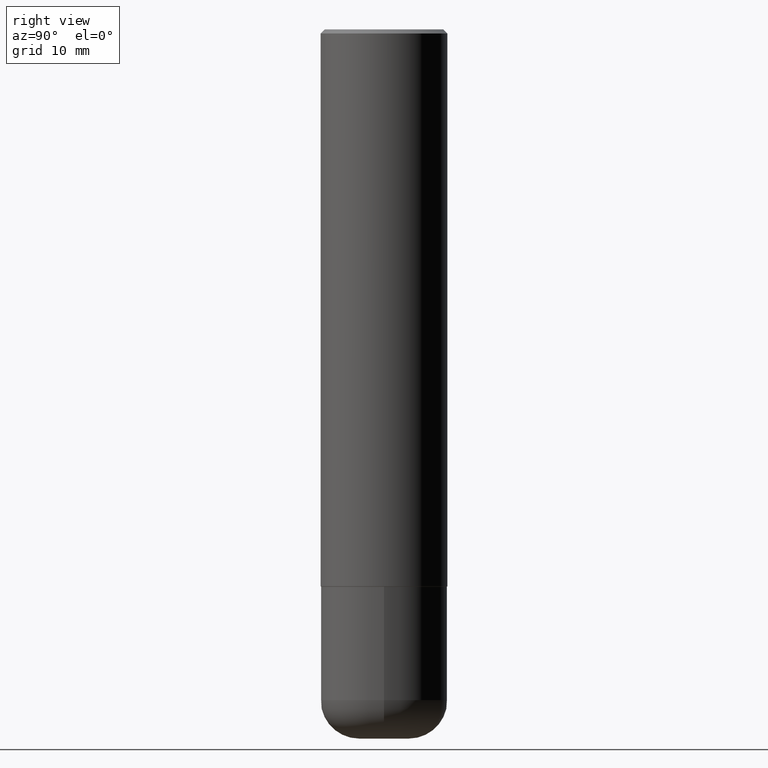
[diagram: clean part render]
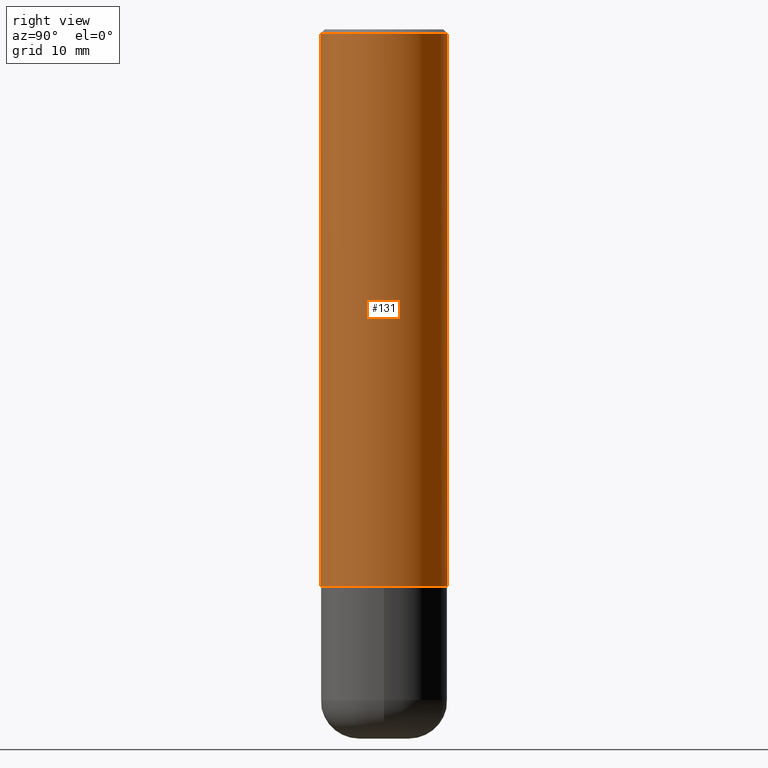
[diagram: same view with one face highlighted and labeled with its STEP entity id]
A machine part, right view. The second image highlights one B-rep face of the part: STEP entity #131.
In plain terms, the highlighted cylindrical surface (partial cylindrical patch) has radius 7.9375 mm, axis along (-0, 0, 1).
Its self-contained STEP definition (entity closure, byte-faithful):
#25 = VERTEX_POINT ( 'NONE', #68 ) ;
#30 = LINE ( 'NONE', #159, #148 ) ;
#68 = CARTESIAN_POINT ( 'NONE',  ( -2.182175836776892872E-15, -0.3125000000000099365, -2.748999999999999222 ) ) ;
#107 = EDGE_CURVE ( 'NONE', #25, #319, #198, .T. ) ;
#115 = CARTESIAN_POINT ( 'NONE',  ( 4.889594666967924290E-31, -6.984885851938207279E-17, -0.02000000000000006981 ) ) ;
#120 = CIRCLE ( 'NONE', #369, 0.3125000000000002776 ) ;
#123 = ORIENTED_EDGE ( 'NONE', *, *, #107, .F. ) ;
#131 = ADVANCED_FACE ( 'NONE', ( #332 ), #165, .T. ) ;
#133 = CARTESIAN_POINT ( 'NONE',  ( 0.000000000000000000, 0.000000000000000000, 0.000000000000000000 ) ) ;
#141 = CARTESIAN_POINT ( 'NONE',  ( 2.220446049250347791E-15, 0.3124999999999906741, -2.749000000000000998 ) ) ;
#142 = AXIS2_PLACEMENT_3D ( 'NONE', #133, #394, #226 ) ;
#148 = VECTOR ( 'NONE', #251, 39.37007874015748143 ) ;
#157 = CARTESIAN_POINT ( 'NONE',  ( -2.143905624303602036E-15, -0.3124999999999999445, -0.01999999999999897693 ) ) ;
#159 = CARTESIAN_POINT ( 'NONE',  ( 2.220446049250313081E-15, 0.3125000000000000555, -1.091388414365341542E-15 ) ) ;
#165 = CYLINDRICAL_SURFACE ( 'NONE', #142, 0.3125000000000000555 ) ;
#170 = EDGE_CURVE ( 'NONE', #25, #283, #120, .T. ) ;
#172 = CARTESIAN_POINT ( 'NONE',  ( -2.182175836776958741E-15, -0.3125000000000000555, 1.091388414365341542E-15 ) ) ;
#185 = ORIENTED_EDGE ( 'NONE', *, *, #320, .T. ) ;
#192 = AXIS2_PLACEMENT_3D ( 'NONE', #115, #311, #344 ) ;
#198 = LINE ( 'NONE', #172, #375 ) ;
#218 = ORIENTED_EDGE ( 'NONE', *, *, #242, .F. ) ;
#226 = DIRECTION ( 'NONE',  ( -6.982962677686266711E-15, -1.000000000000000000, 3.492442925969092226E-15 ) ) ;
#239 = DIRECTION ( 'NONE',  ( -6.982962677686265922E-15, -1.000000000000000000, 3.496765431890253764E-15 ) ) ;
#240 = VERTEX_POINT ( 'NONE', #338 ) ;
#242 = EDGE_CURVE ( 'NONE', #319, #240, #277, .T. ) ;
#251 = DIRECTION ( 'NONE',  ( -2.444797333483953649E-29, 3.492442925969092620E-15, 1.000000000000000000 ) ) ;
#272 = CARTESIAN_POINT ( 'NONE',  ( 6.720747869747387921E-29, -9.600725603489034077E-15, -2.749000000000000110 ) ) ;
#277 = CIRCLE ( 'NONE', #192, 0.3124999999999998890 ) ;
#283 = VERTEX_POINT ( 'NONE', #141 ) ;
#298 = DIRECTION ( 'NONE',  ( -2.444797333483953649E-29, 3.492442925969092620E-15, 1.000000000000000000 ) ) ;
#311 = DIRECTION ( 'NONE',  ( -2.444797333483953649E-29, 3.492442925969092226E-15, 1.000000000000000000 ) ) ;
#319 = VERTEX_POINT ( 'NONE', #157 ) ;
#320 = EDGE_CURVE ( 'NONE', #283, #240, #30, .T. ) ;
#332 = FACE_OUTER_BOUND ( 'NONE', #354, .T. ) ;
#338 = CARTESIAN_POINT ( 'NONE',  ( 2.182175836776957558E-15, 0.3124999999999998335, -0.02000000000000116268 ) ) ;
#344 = DIRECTION ( 'NONE',  ( -6.982962677686265133E-15, -1.000000000000000000, 3.496765431890258103E-15 ) ) ;
#350 = ORIENTED_EDGE ( 'NONE', *, *, #170, .T. ) ;
#354 = EDGE_LOOP ( 'NONE', ( #350, #185, #218, #123 ) ) ;
#369 = AXIS2_PLACEMENT_3D ( 'NONE', #272, #406, #239 ) ;
#375 = VECTOR ( 'NONE', #298, 39.37007874015748143 ) ;
#394 = DIRECTION ( 'NONE',  ( -2.444797333483953649E-29, 3.492442925969092226E-15, 1.000000000000000000 ) ) ;
#406 = DIRECTION ( 'NONE',  ( -2.444797333483953649E-29, 3.492442925969092226E-15, 1.000000000000000000 ) ) ;